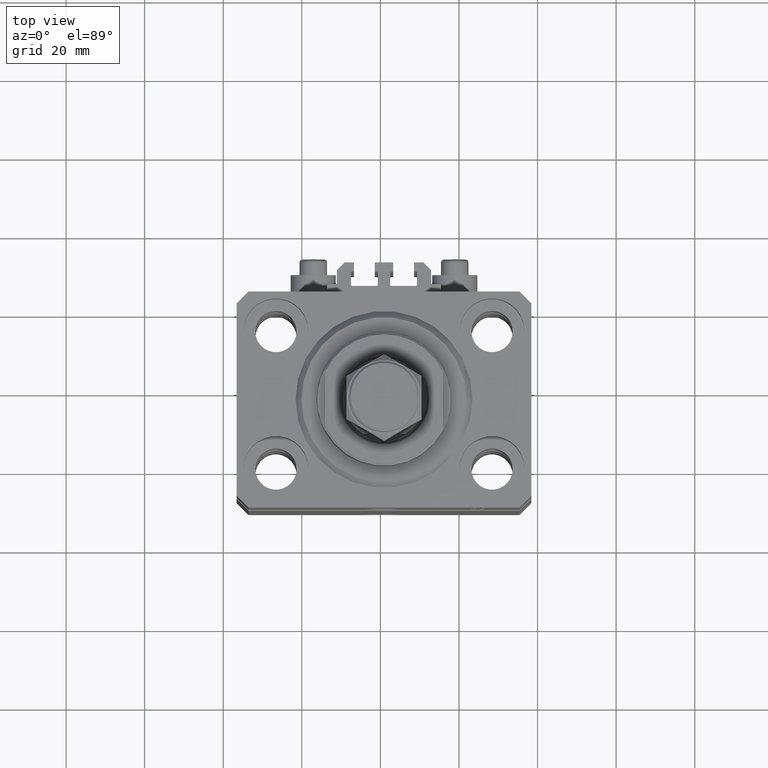
[diagram: clean part render]
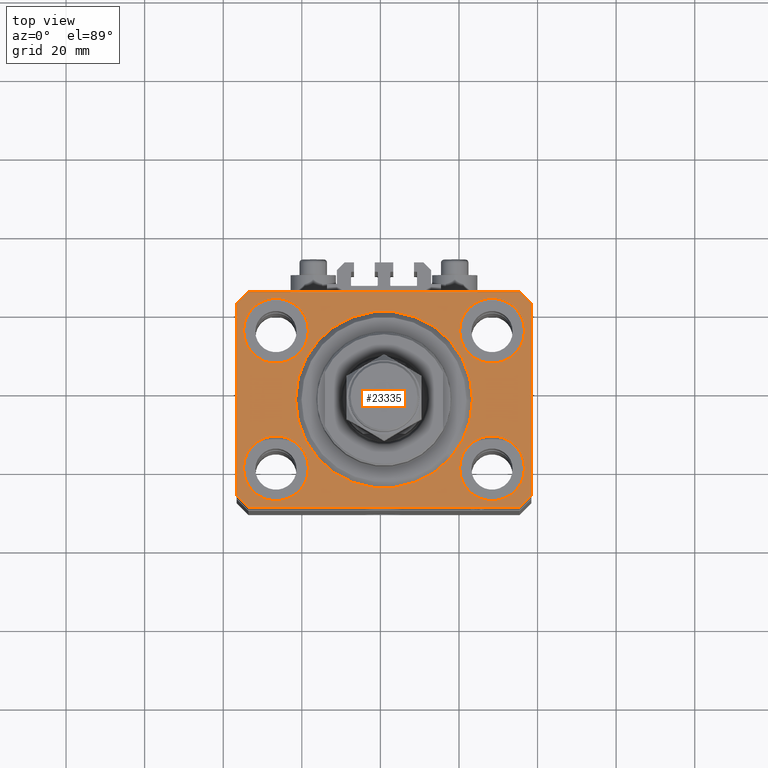
[diagram: same view with one face highlighted and labeled with its STEP entity id]
A machine part, top view. The second image highlights one B-rep face of the part: STEP entity #23335.
In plain terms, the highlighted planar face has unit normal (0, 0, 1).
Its self-contained STEP definition (entity closure, byte-faithful):
#108 = CARTESIAN_POINT ( 'NONE',  ( -22.50000000000000355, 2.755455298081544383E-15, 0.000000000000000000 ) ) ;
#216 = ORIENTED_EDGE ( 'NONE', *, *, #23916, .F. ) ;
#757 = CARTESIAN_POINT ( 'NONE',  ( 0.000000000000000000, 0.000000000000000000, 0.000000000000000000 ) ) ;
#1054 = DIRECTION ( 'NONE',  ( 1.000000000000000000, 0.000000000000000000, 0.000000000000000000 ) ) ;
#1393 = ORIENTED_EDGE ( 'NONE', *, *, #38596, .F. ) ;
#1478 = VECTOR ( 'NONE', #30060, 1000.000000000000114 ) ;
#2093 = CARTESIAN_POINT ( 'NONE',  ( 37.49999999999999289, -24.50000000000000000, 0.000000000000000000 ) ) ;
#2400 = CIRCLE ( 'NONE', #8664, 8.250000000000000000 ) ;
#2846 = CARTESIAN_POINT ( 'NONE',  ( 19.25000000000000000, -17.50000000000000000, 0.000000000000000000 ) ) ;
#3137 = EDGE_CURVE ( 'NONE', #40772, #42302, #39794, .T. ) ;
#3261 = EDGE_LOOP ( 'NONE', ( #39898, #6607 ) ) ;
#3285 = CARTESIAN_POINT ( 'NONE',  ( -35.75000000000000711, 17.50000000000000000, 0.000000000000000000 ) ) ;
#4133 = LINE ( 'NONE', #37486, #42210 ) ;
#4139 = ORIENTED_EDGE ( 'NONE', *, *, #21403, .T. ) ;
#4347 = CARTESIAN_POINT ( 'NONE',  ( -37.49999999999999289, 24.50000000000000000, 0.000000000000000000 ) ) ;
#4412 = AXIS2_PLACEMENT_3D ( 'NONE', #45256, #22742, #8005 ) ;
#4556 = VERTEX_POINT ( 'NONE', #46618 ) ;
#4740 = DIRECTION ( 'NONE',  ( 0.000000000000000000, 0.000000000000000000, 1.000000000000000000 ) ) ;
#4801 = CARTESIAN_POINT ( 'NONE',  ( 34.49999999999999289, -27.49999999999999645, 0.000000000000000000 ) ) ;
#4911 = DIRECTION ( 'NONE',  ( 1.000000000000000000, 0.000000000000000000, -0.000000000000000000 ) ) ;
#5008 = EDGE_CURVE ( 'NONE', #46670, #18868, #4133, .T. ) ;
#5586 = ORIENTED_EDGE ( 'NONE', *, *, #15703, .F. ) ;
#6202 = ORIENTED_EDGE ( 'NONE', *, *, #43123, .F. ) ;
#6575 = DIRECTION ( 'NONE',  ( 0.000000000000000000, 0.000000000000000000, 1.000000000000000000 ) ) ;
#6607 = ORIENTED_EDGE ( 'NONE', *, *, #45237, .F. ) ;
#6612 = CARTESIAN_POINT ( 'NONE',  ( 34.50000000000056843, 27.50000000000000000, 0.000000000000000000 ) ) ;
#6640 = CARTESIAN_POINT ( 'NONE',  ( 35.74999999999999289, 17.50000000000001066, 0.000000000000000000 ) ) ;
#6769 = VERTEX_POINT ( 'NONE', #15904 ) ;
#7532 = CARTESIAN_POINT ( 'NONE',  ( -34.49999999999998579, -27.49999999999999645, 0.000000000000000000 ) ) ;
#7694 = CARTESIAN_POINT ( 'NONE',  ( 34.49999999999999289, -27.49999999999999645, 0.000000000000000000 ) ) ;
#7866 = FACE_OUTER_BOUND ( 'NONE', #39331, .T. ) ;
#8005 = DIRECTION ( 'NONE',  ( 1.000000000000000000, 0.000000000000000000, 0.000000000000000000 ) ) ;
#8664 = AXIS2_PLACEMENT_3D ( 'NONE', #18687, #33393, #11079 ) ;
#8758 = EDGE_LOOP ( 'NONE', ( #27762, #6202 ) ) ;
#9098 = EDGE_CURVE ( 'NONE', #18868, #13647, #11856, .T. ) ;
#9476 = CARTESIAN_POINT ( 'NONE',  ( 37.49999999999999289, -24.50000000000000000, 0.000000000000000000 ) ) ;
#9634 = DIRECTION ( 'NONE',  ( 1.000000000000000000, 0.000000000000000000, 0.000000000000000000 ) ) ;
#9806 = EDGE_CURVE ( 'NONE', #18919, #32893, #2400, .T. ) ;
#10002 = AXIS2_PLACEMENT_3D ( 'NONE', #36747, #6575, #21548 ) ;
#10532 = EDGE_LOOP ( 'NONE', ( #40527, #216 ) ) ;
#10999 = ORIENTED_EDGE ( 'NONE', *, *, #32270, .T. ) ;
#11079 = DIRECTION ( 'NONE',  ( 1.000000000000000000, 0.000000000000000000, 0.000000000000000000 ) ) ;
#11653 = EDGE_CURVE ( 'NONE', #6769, #46670, #46117, .T. ) ;
#11856 = LINE ( 'NONE', #7694, #19626 ) ;
#11996 = CIRCLE ( 'NONE', #39383, 8.250000000000000000 ) ;
#12032 = FACE_BOUND ( 'NONE', #8758, .T. ) ;
#12267 = FACE_BOUND ( 'NONE', #10532, .T. ) ;
#12629 = ORIENTED_EDGE ( 'NONE', *, *, #3137, .F. ) ;
#13168 = LINE ( 'NONE', #9476, #44301 ) ;
#13595 = ORIENTED_EDGE ( 'NONE', *, *, #5008, .T. ) ;
#13647 = VERTEX_POINT ( 'NONE', #2093 ) ;
#14202 = VECTOR ( 'NONE', #42917, 1000.000000000000000 ) ;
#14342 = ORIENTED_EDGE ( 'NONE', *, *, #19022, .T. ) ;
#14625 = EDGE_LOOP ( 'NONE', ( #1393, #12629 ) ) ;
#15249 = LINE ( 'NONE', #23338, #48287 ) ;
#15703 = EDGE_CURVE ( 'NONE', #32893, #18919, #15910, .T. ) ;
#15880 = CARTESIAN_POINT ( 'NONE',  ( 27.49999999999999645, 17.50000000000001066, 0.000000000000000000 ) ) ;
#15904 = CARTESIAN_POINT ( 'NONE',  ( -37.49999999999999289, -24.50000000000000000, 0.000000000000000000 ) ) ;
#15910 = CIRCLE ( 'NONE', #32365, 8.250000000000000000 ) ;
#16129 = EDGE_CURVE ( 'NONE', #25855, #21312, #11996, .T. ) ;
#16271 = VECTOR ( 'NONE', #33790, 1000.000000000000000 ) ;
#16848 = ORIENTED_EDGE ( 'NONE', *, *, #9806, .F. ) ;
#17024 = CIRCLE ( 'NONE', #23295, 8.249999999999992895 ) ;
#17577 = VECTOR ( 'NONE', #32241, 1000.000000000000000 ) ;
#17708 = CIRCLE ( 'NONE', #18486, 22.50000000000000355 ) ;
#17747 = VERTEX_POINT ( 'NONE', #18657 ) ;
#18424 = CIRCLE ( 'NONE', #28596, 8.250000000000000000 ) ;
#18486 = AXIS2_PLACEMENT_3D ( 'NONE', #43366, #24765, #32364 ) ;
#18657 = CARTESIAN_POINT ( 'NONE',  ( -34.49999999999999289, 27.50000000000000000, 0.000000000000000000 ) ) ;
#18687 = CARTESIAN_POINT ( 'NONE',  ( -27.50000000000000355, -17.50000000000000000, 0.000000000000000000 ) ) ;
#18741 = DIRECTION ( 'NONE',  ( 0.7071067811865474617, 0.7071067811865474617, 0.000000000000000000 ) ) ;
#18796 = LINE ( 'NONE', #41797, #1478 ) ;
#18834 = LINE ( 'NONE', #4347, #16271 ) ;
#18868 = VERTEX_POINT ( 'NONE', #4801 ) ;
#18919 = VERTEX_POINT ( 'NONE', #31031 ) ;
#19022 = EDGE_CURVE ( 'NONE', #17747, #4556, #36639, .T. ) ;
#19328 = DIRECTION ( 'NONE',  ( 0.000000000000000000, 0.000000000000000000, 1.000000000000000000 ) ) ;
#19440 = CIRCLE ( 'NONE', #10002, 8.250000000000000000 ) ;
#19626 = VECTOR ( 'NONE', #18741, 1000.000000000000114 ) ;
#21312 = VERTEX_POINT ( 'NONE', #2846 ) ;
#21403 = EDGE_CURVE ( 'NONE', #13647, #43918, #13168, .T. ) ;
#21548 = DIRECTION ( 'NONE',  ( 1.000000000000000000, 0.000000000000000000, 0.000000000000000000 ) ) ;
#21648 = DIRECTION ( 'NONE',  ( 0.000000000000000000, 0.000000000000000000, 1.000000000000000000 ) ) ;
#22023 = DIRECTION ( 'NONE',  ( 1.000000000000000000, 0.000000000000000000, 0.000000000000000000 ) ) ;
#22159 = CARTESIAN_POINT ( 'NONE',  ( 19.25000000000000000, 17.50000000000001066, 0.000000000000000000 ) ) ;
#22742 = DIRECTION ( 'NONE',  ( 0.000000000000000000, 0.000000000000000000, 1.000000000000000000 ) ) ;
#23295 = AXIS2_PLACEMENT_3D ( 'NONE', #36237, #37869, #28880 ) ;
#23335 = ADVANCED_FACE ( 'NONE', ( #23793, #12032, #27469, #12267, #34347, #7866 ), #38012, .T. ) ;
#23338 = CARTESIAN_POINT ( 'NONE',  ( 34.50000000000056843, 27.50000000000000000, 0.000000000000000000 ) ) ;
#23384 = CARTESIAN_POINT ( 'NONE',  ( -27.50000000000000355, 17.50000000000000000, 0.000000000000000000 ) ) ;
#23558 = DIRECTION ( 'NONE',  ( 0.000000000000000000, 0.000000000000000000, 1.000000000000000000 ) ) ;
#23793 = FACE_BOUND ( 'NONE', #24626, .T. ) ;
#23916 = EDGE_CURVE ( 'NONE', #45655, #31642, #18424, .T. ) ;
#24626 = EDGE_LOOP ( 'NONE', ( #5586, #16848 ) ) ;
#24765 = DIRECTION ( 'NONE',  ( 0.000000000000000000, 0.000000000000000000, 1.000000000000000000 ) ) ;
#25523 = CARTESIAN_POINT ( 'NONE',  ( 37.50000000000051870, 24.49999999999995381, 0.000000000000000000 ) ) ;
#25696 = CARTESIAN_POINT ( 'NONE',  ( 27.50000000000000355, -17.50000000000000000, 0.000000000000000000 ) ) ;
#25779 = AXIS2_PLACEMENT_3D ( 'NONE', #15880, #19328, #30354 ) ;
#25855 = VERTEX_POINT ( 'NONE', #26560 ) ;
#26560 = CARTESIAN_POINT ( 'NONE',  ( 35.75000000000000711, -17.50000000000000000, 0.000000000000000000 ) ) ;
#27444 = EDGE_CURVE ( 'NONE', #44805, #42519, #17024, .T. ) ;
#27469 = FACE_BOUND ( 'NONE', #3261, .T. ) ;
#27762 = ORIENTED_EDGE ( 'NONE', *, *, #16129, .F. ) ;
#28121 = DIRECTION ( 'NONE',  ( 1.076236605503979380E-14, 1.000000000000000000, 0.000000000000000000 ) ) ;
#28596 = AXIS2_PLACEMENT_3D ( 'NONE', #23384, #4740, #1054 ) ;
#28744 = CARTESIAN_POINT ( 'NONE',  ( 0.000000000000000000, 0.000000000000000000, 0.000000000000000000 ) ) ;
#28880 = DIRECTION ( 'NONE',  ( 1.000000000000000000, 0.000000000000000000, 0.000000000000000000 ) ) ;
#30060 = DIRECTION ( 'NONE',  ( -0.7071067811865356934, 0.7071067811865594521, 0.000000000000000000 ) ) ;
#30354 = DIRECTION ( 'NONE',  ( 1.000000000000000000, 0.000000000000000000, 0.000000000000000000 ) ) ;
#31031 = CARTESIAN_POINT ( 'NONE',  ( -35.75000000000000711, -17.50000000000000000, 0.000000000000000000 ) ) ;
#31202 = AXIS2_PLACEMENT_3D ( 'NONE', #28744, #21648, #9634 ) ;
#31410 = CARTESIAN_POINT ( 'NONE',  ( -19.25000000000000355, -17.50000000000000000, 0.000000000000000000 ) ) ;
#31642 = VERTEX_POINT ( 'NONE', #38479 ) ;
#32241 = DIRECTION ( 'NONE',  ( -0.7071067811865471286, -0.7071067811865479058, 0.000000000000000000 ) ) ;
#32270 = EDGE_CURVE ( 'NONE', #43918, #46208, #18796, .T. ) ;
#32364 = DIRECTION ( 'NONE',  ( 1.000000000000000000, 0.000000000000000000, 0.000000000000000000 ) ) ;
#32365 = AXIS2_PLACEMENT_3D ( 'NONE', #40981, #36845, #47614 ) ;
#32893 = VERTEX_POINT ( 'NONE', #31410 ) ;
#33055 = CARTESIAN_POINT ( 'NONE',  ( 22.50000000000000355, 0.000000000000000000, 0.000000000000000000 ) ) ;
#33393 = DIRECTION ( 'NONE',  ( 0.000000000000000000, 0.000000000000000000, 1.000000000000000000 ) ) ;
#33574 = ORIENTED_EDGE ( 'NONE', *, *, #42421, .T. ) ;
#33790 = DIRECTION ( 'NONE',  ( 0.000000000000000000, -1.000000000000000000, 0.000000000000000000 ) ) ;
#34347 = FACE_BOUND ( 'NONE', #14625, .T. ) ;
#34468 = ORIENTED_EDGE ( 'NONE', *, *, #41096, .T. ) ;
#35096 = CARTESIAN_POINT ( 'NONE',  ( -37.49999999999999289, -24.50000000000000000, 0.000000000000000000 ) ) ;
#35419 = ORIENTED_EDGE ( 'NONE', *, *, #9098, .T. ) ;
#35914 = CARTESIAN_POINT ( 'NONE',  ( -34.49999999999999289, 27.50000000000000000, 0.000000000000000000 ) ) ;
#36237 = CARTESIAN_POINT ( 'NONE',  ( 27.49999999999999645, 17.50000000000001066, 0.000000000000000000 ) ) ;
#36639 = LINE ( 'NONE', #35914, #17577 ) ;
#36747 = CARTESIAN_POINT ( 'NONE',  ( 27.50000000000000355, -17.50000000000000000, 0.000000000000000000 ) ) ;
#36845 = DIRECTION ( 'NONE',  ( 0.000000000000000000, 0.000000000000000000, 1.000000000000000000 ) ) ;
#37486 = CARTESIAN_POINT ( 'NONE',  ( -34.49999999999998579, -27.49999999999999645, 0.000000000000000000 ) ) ;
#37681 = DIRECTION ( 'NONE',  ( 0.000000000000000000, 0.000000000000000000, 1.000000000000000000 ) ) ;
#37869 = DIRECTION ( 'NONE',  ( 0.000000000000000000, 0.000000000000000000, 1.000000000000000000 ) ) ;
#38012 = PLANE ( 'NONE',  #41886 ) ;
#38031 = DIRECTION ( 'NONE',  ( -1.000000000000000000, 0.000000000000000000, 0.000000000000000000 ) ) ;
#38479 = CARTESIAN_POINT ( 'NONE',  ( -19.25000000000000355, 17.50000000000000000, 0.000000000000000000 ) ) ;
#38596 = EDGE_CURVE ( 'NONE', #42302, #40772, #17708, .T. ) ;
#38866 = CIRCLE ( 'NONE', #4412, 8.250000000000000000 ) ;
#39048 = CIRCLE ( 'NONE', #25779, 8.249999999999992895 ) ;
#39331 = EDGE_LOOP ( 'NONE', ( #34468, #14342, #33574, #40610, #13595, #35419, #4139, #10999 ) ) ;
#39383 = AXIS2_PLACEMENT_3D ( 'NONE', #25696, #37681, #22023 ) ;
#39794 = CIRCLE ( 'NONE', #31202, 22.50000000000000355 ) ;
#39817 = EDGE_CURVE ( 'NONE', #31642, #45655, #38866, .T. ) ;
#39898 = ORIENTED_EDGE ( 'NONE', *, *, #27444, .F. ) ;
#40527 = ORIENTED_EDGE ( 'NONE', *, *, #39817, .F. ) ;
#40610 = ORIENTED_EDGE ( 'NONE', *, *, #11653, .T. ) ;
#40772 = VERTEX_POINT ( 'NONE', #108 ) ;
#40981 = CARTESIAN_POINT ( 'NONE',  ( -27.50000000000000355, -17.50000000000000000, 0.000000000000000000 ) ) ;
#41096 = EDGE_CURVE ( 'NONE', #46208, #17747, #15249, .T. ) ;
#41390 = DIRECTION ( 'NONE',  ( 1.000000000000000000, 0.000000000000000000, 0.000000000000000000 ) ) ;
#41797 = CARTESIAN_POINT ( 'NONE',  ( 37.50000000000051870, 24.49999999999995381, 0.000000000000000000 ) ) ;
#41886 = AXIS2_PLACEMENT_3D ( 'NONE', #757, #23558, #4911 ) ;
#42210 = VECTOR ( 'NONE', #41390, 1000.000000000000000 ) ;
#42302 = VERTEX_POINT ( 'NONE', #33055 ) ;
#42421 = EDGE_CURVE ( 'NONE', #4556, #6769, #18834, .T. ) ;
#42519 = VERTEX_POINT ( 'NONE', #22159 ) ;
#42917 = DIRECTION ( 'NONE',  ( 0.7071067811865483499, -0.7071067811865466846, 0.000000000000000000 ) ) ;
#43123 = EDGE_CURVE ( 'NONE', #21312, #25855, #19440, .T. ) ;
#43366 = CARTESIAN_POINT ( 'NONE',  ( 0.000000000000000000, 0.000000000000000000, 0.000000000000000000 ) ) ;
#43918 = VERTEX_POINT ( 'NONE', #25523 ) ;
#44301 = VECTOR ( 'NONE', #28121, 1000.000000000000000 ) ;
#44805 = VERTEX_POINT ( 'NONE', #6640 ) ;
#45237 = EDGE_CURVE ( 'NONE', #42519, #44805, #39048, .T. ) ;
#45256 = CARTESIAN_POINT ( 'NONE',  ( -27.50000000000000355, 17.50000000000000000, 0.000000000000000000 ) ) ;
#45655 = VERTEX_POINT ( 'NONE', #3285 ) ;
#46117 = LINE ( 'NONE', #35096, #14202 ) ;
#46208 = VERTEX_POINT ( 'NONE', #6612 ) ;
#46618 = CARTESIAN_POINT ( 'NONE',  ( -37.49999999999999289, 24.50000000000000000, 0.000000000000000000 ) ) ;
#46670 = VERTEX_POINT ( 'NONE', #7532 ) ;
#47614 = DIRECTION ( 'NONE',  ( 1.000000000000000000, 0.000000000000000000, 0.000000000000000000 ) ) ;
#48287 = VECTOR ( 'NONE', #38031, 1000.000000000000000 ) ;